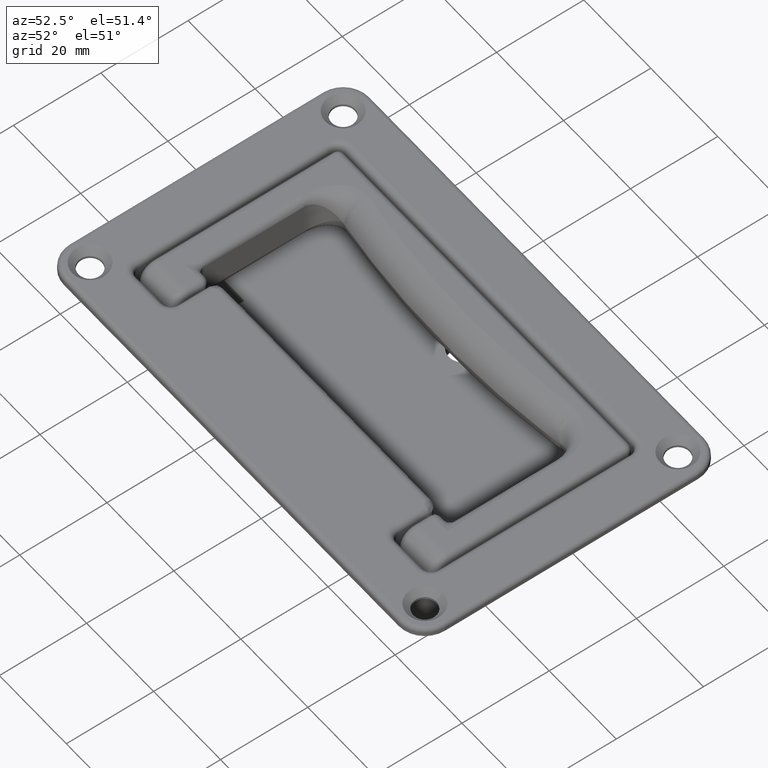
[diagram: clean part render]
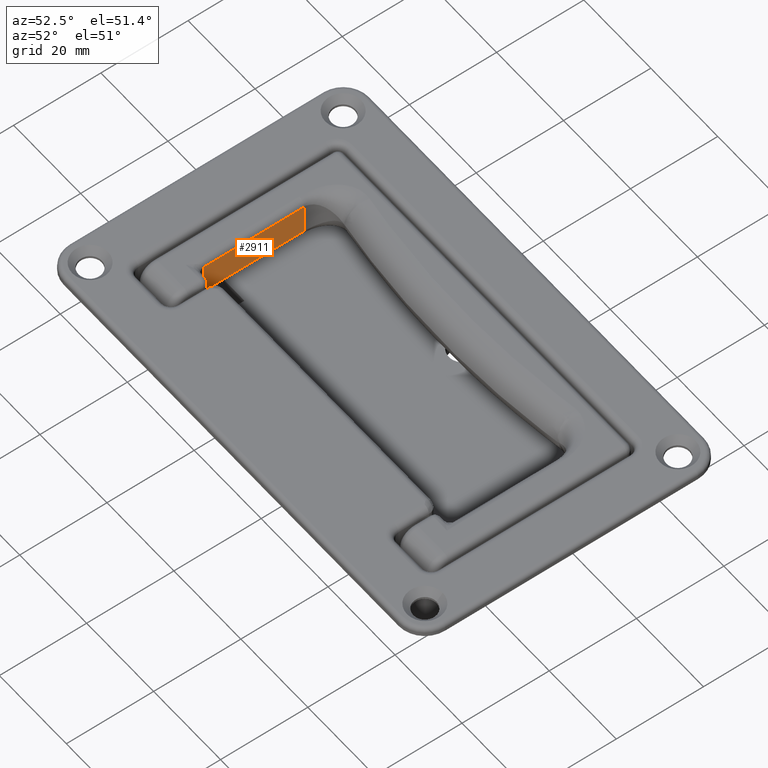
[diagram: same view with one face highlighted and labeled with its STEP entity id]
A machine part, auxiliary view. The second image highlights one B-rep face of the part: STEP entity #2911.
In plain terms, the highlighted planar face has unit normal (1, 0, 0).
Its self-contained STEP definition (entity closure, byte-faithful):
#102=B_SPLINE_CURVE_WITH_KNOTS('',3,(#5291,#5292,#5293,#5294,#5295,#5296,
#5297,#5298,#5299,#5300,#5301,#5302,#5303,#5304,#5305,#5306,#5307,#5308,
#5309,#5310,#5311,#5312,#5313,#5314,#5315,#5316,#5317,#5318,#5319,#5320,
#5321,#5322,#5323,#5324,#5325,#5326,#5327,#5328,#5329,#5330,#5331,#5332,
#5333,#5334,#5335,#5336,#5337,#5338,#5339,#5340,#5341,#5342,#5343,#5344,
#5345,#5346,#5347,#5348,#5349,#5350,#5351,#5352,#5353,#5354,#5355,#5356),
 .UNSPECIFIED.,.F.,.F.,(4,2,1,1,1,1,1,1,1,1,1,2,1,1,2,2,2,2,2,2,2,2,2,2,
2,2,2,2,2,2,2,2,2,2,2,2,2,1,4),(0.,0.04166666666667,0.08333333333333,0.125,
0.1666666666667,0.2083333333333,0.25,0.2916666666667,0.3333333333333,0.375,
0.4166666666667,0.4583333333333,0.5,0.5416666666667,0.545308288132334,0.5833333333333,
0.590684725867893,0.625,0.636058700335925,0.6666666666667,0.681432318872164,
0.7083333333333,0.726823791046149,0.75,0.772210837904028,0.7916666666667,
0.817591067966466,0.8333333333333,0.862945300230811,0.875,0.908303777460492,
0.9166666666667,0.943139255776996,0.953707977855611,0.9583333333333,0.97870967014076,
0.997477944832788,0.999086006948219,1.),.UNSPECIFIED.);
#108=B_SPLINE_CURVE_WITH_KNOTS('',3,(#5695,#5696,#5697,#5698,#5699,#5700,
#5701,#5702,#5703,#5704,#5705,#5706,#5707,#5708,#5709),.UNSPECIFIED.,.F.,
 .F.,(4,2,2,1,1,1,2,2,4),(0.,0.49218749999998,0.49999999999998,0.624999999999984,
0.687499999999986,0.718749999999987,0.742187499999987,0.749999999999987,
1.),.UNSPECIFIED.);
#180=LINE('',#5533,#370);
#185=LINE('',#5773,#375);
#370=VECTOR('',#3624,7.00186828142333);
#375=VECTOR('',#3651,7.00005507725794);
#523=PLANE('',#3148);
#647=FACE_OUTER_BOUND('',#847,.T.);
#847=EDGE_LOOP('',(#2114,#2115,#2116,#2117));
#1287=VERTEX_POINT('',#5289);
#1288=VERTEX_POINT('',#5290);
#1289=VERTEX_POINT('',#5495);
#1295=VERTEX_POINT('',#5693);
#1580=EDGE_CURVE('',#1287,#1288,#102,.T.);
#1585=EDGE_CURVE('',#1289,#1287,#180,.T.);
#1598=EDGE_CURVE('',#1295,#1289,#108,.T.);
#1600=EDGE_CURVE('',#1288,#1295,#185,.T.);
#2114=ORIENTED_EDGE('',*,*,#1598,.F.);
#2115=ORIENTED_EDGE('',*,*,#1600,.F.);
#2116=ORIENTED_EDGE('',*,*,#1580,.F.);
#2117=ORIENTED_EDGE('',*,*,#1585,.F.);
#2911=ADVANCED_FACE('',(#647),#523,.T.);
#3148=AXIS2_PLACEMENT_3D('',#5772,#3649,#3650);
#3624=DIRECTION('',(-1.56945555459405E-8,3.45535190688111E-6,0.99999999999403));
#3649=DIRECTION('center_axis',(1.,0.,0.));
#3650=DIRECTION('ref_axis',(0.,0.,1.));
#3651=DIRECTION('',(5.456316239669E-11,-1.397991982782E-10,-1.));
#5289=CARTESIAN_POINT('',(17.499999806581,-80.500048646588,-56.4992382562195));
#5290=CARTESIAN_POINT('',(17.4999999964654,-57.5000004302423,-56.4999260428091));
#5291=CARTESIAN_POINT('Ctrl Pts',(17.499999806581,-80.500048646588,-56.4992382562195));
#5292=CARTESIAN_POINT('Ctrl Pts',(17.499999806581,-79.834199582003,-56.4992382562195));
#5293=CARTESIAN_POINT('Ctrl Pts',(17.4999999999989,-79.1894136363694,-56.4997958900365));
#5294=CARTESIAN_POINT('Ctrl Pts',(17.4999999999989,-77.9434397710786,-56.500204109978));
#5295=CARTESIAN_POINT('Ctrl Pts',(17.4999999999989,-76.741063931764,-56.49990527224));
#5296=CARTESIAN_POINT('Ctrl Pts',(17.4999999999989,-75.0559957966499,-56.500025382237));
#5297=CARTESIAN_POINT('Ctrl Pts',(17.4999999999989,-73.4828867091301,-56.499993198858));
#5298=CARTESIAN_POINT('Ctrl Pts',(17.4999999999989,-72.01434629547,-56.500001822374));
#5299=CARTESIAN_POINT('Ctrl Pts',(17.4999999999989,-70.6438821955001,-56.499999511696));
#5300=CARTESIAN_POINT('Ctrl Pts',(17.4999999999994,-69.3653631535201,-56.5000001308645));
#5301=CARTESIAN_POINT('Ctrl Pts',(17.5000000000003,-68.1731472409796,-56.4999999649346));
#5302=CARTESIAN_POINT('Ctrl Pts',(17.4999999999947,-67.0620198125808,-56.5000000093529));
#5303=CARTESIAN_POINT('Ctrl Pts',(17.5000000000033,-66.0271292382284,-56.4999999978626));
#5304=CARTESIAN_POINT('Ctrl Pts',(17.4999999999998,-65.3850064621714,-56.4999999986077));
#5305=CARTESIAN_POINT('Ctrl Pts',(17.4999999999988,-64.7653789638871,-56.5000000016388));
#5306=CARTESIAN_POINT('Ctrl Pts',(17.4999999999974,-64.1682467433799,-56.5000000065158));
#5307=CARTESIAN_POINT('Ctrl Pts',(17.5000000000016,-63.5893486823978,-56.4999999844014));
#5308=CARTESIAN_POINT('Ctrl Pts',(17.5000000000019,-63.2996813275079,-56.5000000011426));
#5309=CARTESIAN_POINT('Ctrl Pts',(17.5000000000021,-63.0341710498703,-56.5000000177056));
#5310=CARTESIAN_POINT('Ctrl Pts',(17.5000000000011,-62.800206689767,-56.5000000456427));
#5311=CARTESIAN_POINT('Ctrl Pts',(17.5000000000009,-62.5304438594289,-56.5000000003777));
#5312=CARTESIAN_POINT('Ctrl Pts',(17.5000000000009,-62.4870353280085,-56.49999999165));
#5313=CARTESIAN_POINT('Ctrl Pts',(17.500000000001,-62.2426564455617,-56.4999999353131));
#5314=CARTESIAN_POINT('Ctrl Pts',(17.500000000002,-62.0477549877271,-56.4999998672413));
#5315=CARTESIAN_POINT('Ctrl Pts',(17.5000000000024,-61.7979759802085,-56.4999999999051));
#5316=CARTESIAN_POINT('Ctrl Pts',(17.5000000000025,-61.7377220665304,-56.5000000390815));
#5317=CARTESIAN_POINT('Ctrl Pts',(17.5000000000023,-61.5129982329413,-56.500000207887));
#5318=CARTESIAN_POINT('Ctrl Pts',(17.5000000000015,-61.3525927818131,-56.5000003647984));
#5319=CARTESIAN_POINT('Ctrl Pts',(17.5000000000007,-61.1213316896201,-56.5000000010843));
#5320=CARTESIAN_POINT('Ctrl Pts',(17.5000000000005,-61.0470983290518,-56.4999998597496));
#5321=CARTESIAN_POINT('Ctrl Pts',(17.5000000000003,-60.840445661008,-56.4999994001785));
#5322=CARTESIAN_POINT('Ctrl Pts',(17.5000000000008,-60.7103471346636,-56.4999990531731));
#5323=CARTESIAN_POINT('Ctrl Pts',(17.5000000000012,-60.4961867820457,-56.4999999747144));
#5324=CARTESIAN_POINT('Ctrl Pts',(17.5000000000014,-60.4104486602696,-56.5000003997172));
#5325=CARTESIAN_POINT('Ctrl Pts',(17.500000000002,-60.2206166842853,-56.5000015709983));
#5326=CARTESIAN_POINT('Ctrl Pts',(17.5000000000031,-60.1173772320687,-56.5000023274472));
#5327=CARTESIAN_POINT('Ctrl Pts',(17.5000000000013,-59.9197825238443,-56.5000002614448));
#5328=CARTESIAN_POINT('Ctrl Pts',(17.4999999999998,-59.8252363121576,-56.4999992488962));
#5329=CARTESIAN_POINT('Ctrl Pts',(17.5000000000017,-59.6519306893403,-56.4999963798827));
#5330=CARTESIAN_POINT('Ctrl Pts',(17.5000000000061,-59.5726677552139,-56.4999947338822));
#5331=CARTESIAN_POINT('Ctrl Pts',(17.4999999999894,-59.3916838153148,-56.4999985653136));
#5332=CARTESIAN_POINT('Ctrl Pts',(17.4999999999824,-59.2912578321898,-56.500000114829));
#5333=CARTESIAN_POINT('Ctrl Pts',(17.5000000000018,-59.1346346126197,-56.5000075734477));
#5334=CARTESIAN_POINT('Ctrl Pts',(17.5000000000176,-59.076557942078,-56.5000113555052));
#5335=CARTESIAN_POINT('Ctrl Pts',(17.4999999999116,-58.912407389693,-56.5000076957581));
#5336=CARTESIAN_POINT('Ctrl Pts',(17.4999999999329,-58.8091272051945,-56.5000096867771));
#5337=CARTESIAN_POINT('Ctrl Pts',(17.5000000000153,-58.6688336380357,-56.4999877958882));
#5338=CARTESIAN_POINT('Ctrl Pts',(17.5000000000305,-58.6288374255325,-56.4999788430772));
#5339=CARTESIAN_POINT('Ctrl Pts',(17.4999999994112,-58.4804908776907,-56.499967197712));
#5340=CARTESIAN_POINT('Ctrl Pts',(17.5000000001131,-58.375927851605,-56.4999357050474));
#5341=CARTESIAN_POINT('Ctrl Pts',(17.4999999999688,-58.2494777416359,-56.5000117174677));
#5342=CARTESIAN_POINT('Ctrl Pts',(17.4999999998172,-58.2243182713131,-56.5000324290105));
#5343=CARTESIAN_POINT('Ctrl Pts',(17.4999999974535,-58.1203778983305,-56.5001040753551));
#5344=CARTESIAN_POINT('Ctrl Pts',(17.4999999977532,-58.0434603112465,-56.5002188952747));
#5345=CARTESIAN_POINT('Ctrl Pts',(17.4999999999012,-57.9379247112473,-56.5001513633369));
#5346=CARTESIAN_POINT('Ctrl Pts',(17.500000000339,-57.9080510880926,-56.5001067769106));
#5347=CARTESIAN_POINT('Ctrl Pts',(17.4999999995606,-57.8653930094045,-56.4999888423837));
#5348=CARTESIAN_POINT('Ctrl Pts',(17.4999999991477,-57.8524456931574,-56.4999457960569));
#5349=CARTESIAN_POINT('Ctrl Pts',(17.499999995264,-57.7826524600426,-56.4997014314374));
#5350=CARTESIAN_POINT('Ctrl Pts',(17.4999999976591,-57.7264587699188,-56.4993456686477));
#5351=CARTESIAN_POINT('Ctrl Pts',(17.5000000048576,-57.6200041358848,-56.4990999412865));
#5352=CARTESIAN_POINT('Ctrl Pts',(17.5000000036295,-57.5696251164348,-56.4991751511269));
#5353=CARTESIAN_POINT('Ctrl Pts',(17.4999999925748,-57.5157222788062,-56.4997373734262));
#5354=CARTESIAN_POINT('Ctrl Pts',(17.4999999911455,-57.509058924831,-56.4998120084578));
#5355=CARTESIAN_POINT('Ctrl Pts',(17.4999999896584,-57.5024088484735,-56.4998949003984));
#5356=CARTESIAN_POINT('Ctrl Pts',(17.4999999891126,-57.50000061824,-56.4999260428083));
#5495=CARTESIAN_POINT('',(17.500000001968,-80.5000728411017,-63.5011065381184));
#5533=CARTESIAN_POINT('',(17.5000097495498,-80.500072840507,-63.501106540866));
#5693=CARTESIAN_POINT('',(17.5000000000006,-57.5000003096093,-63.499981120067));
#5695=CARTESIAN_POINT('Ctrl Pts',(17.5000000000013,-57.50000061922,-63.499981123993));
#5696=CARTESIAN_POINT('Ctrl Pts',(17.4999999999984,-61.2696318142396,-63.4999817067897));
#5697=CARTESIAN_POINT('Ctrl Pts',(17.4999999999976,-65.0392630092614,-63.4999845914279));
#5698=CARTESIAN_POINT('Ctrl Pts',(17.4999999999973,-68.8687296200768,-63.4999880768734));
#5699=CARTESIAN_POINT('Ctrl Pts',(17.4999999999973,-68.9770501879476,-63.499988175818));
#5700=CARTESIAN_POINT('Ctrl Pts',(17.4999999999973,-69.1700046711397,-63.4999883523035));
#5701=CARTESIAN_POINT('Ctrl Pts',(17.5000000045058,-70.025325823954,-63.500071364129));
#5702=CARTESIAN_POINT('Ctrl Pts',(17.4999999694732,-72.0433014435418,-63.5003131447269));
#5703=CARTESIAN_POINT('Ctrl Pts',(17.4999999220403,-73.3976011347504,-63.5004814904651));
#5704=CARTESIAN_POINT('Ctrl Pts',(17.4999998893226,-74.1039900176229,-63.5005706140414));
#5705=CARTESIAN_POINT('Ctrl Pts',(17.499999867461,-74.525856896075,-63.5006241269518));
#5706=CARTESIAN_POINT('Ctrl Pts',(17.4999998598314,-74.6671177421709,-63.5006420828781));
#5707=CARTESIAN_POINT('Ctrl Pts',(17.4999997241053,-77.1165960434422,-63.5009538250202));
#5708=CARTESIAN_POINT('Ctrl Pts',(17.4999995907441,-79.0361722045262,-63.5011054870639));
#5709=CARTESIAN_POINT('Ctrl Pts',(17.4999995907423,-80.500072840507,-63.5011065333617));
#5772=CARTESIAN_POINT('Origin',(17.4999999999998,-57.5,-38.5));
#5773=CARTESIAN_POINT('',(17.4999999996198,-57.50000061824,-56.499926042807));